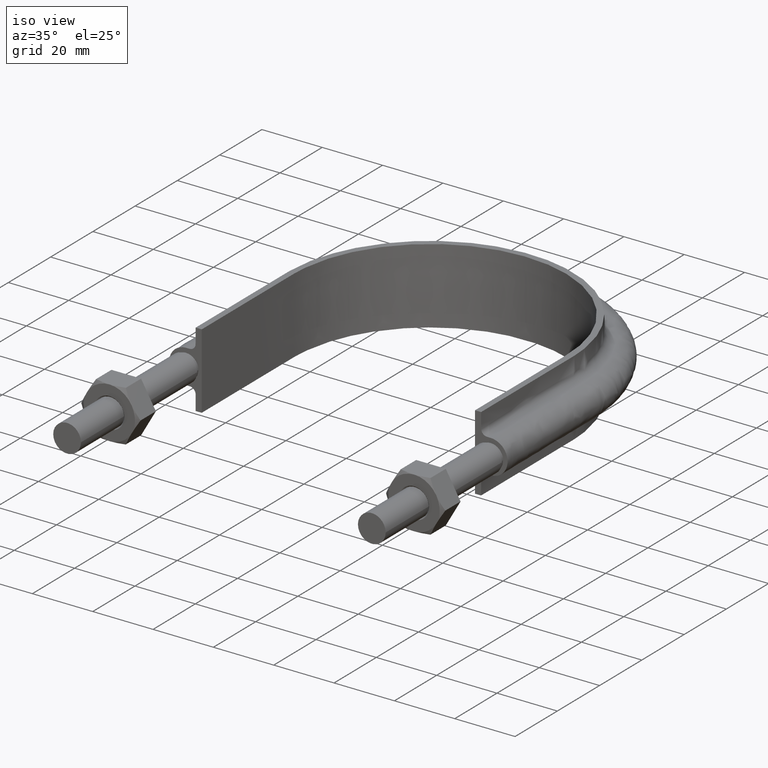
[diagram: clean part render]
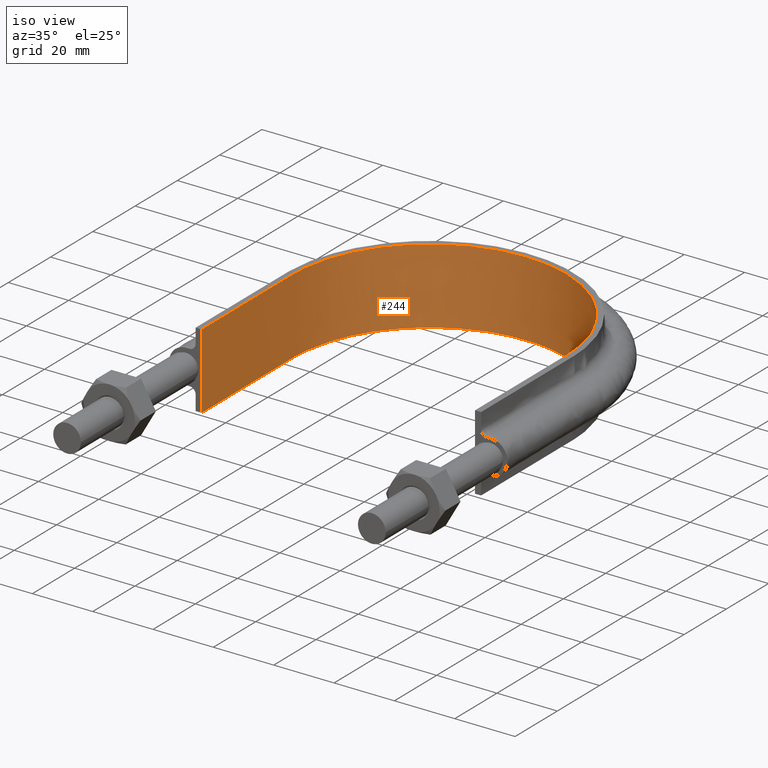
[diagram: same view with one face highlighted and labeled with its STEP entity id]
A machine part, iso view. The second image highlights one B-rep face of the part: STEP entity #244.
In plain terms, the highlighted face is a SurfaceOfExtrusion surface.
Its self-contained STEP definition (entity closure, byte-faithful):
#244 = ADVANCED_FACE( '', ( #355 ), #356, .T. );
#355 = FACE_OUTER_BOUND( '', #686, .T. );
#356 = SURFACE_OF_LINEAR_EXTRUSION( '', #687, #688 );
#686 = EDGE_LOOP( '', ( #1604, #1605, #1606, #1607 ) );
#687 = B_SPLINE_CURVE_WITH_KNOTS( '', 3, ( #1608, #1609, #1610, #1611, #1612, #1613, #1614, #1615, #1616, #1617, #1618, #1619, #1620, #1621, #1622, #1623 ), .UNSPECIFIED., .F., .F., ( 4, 3, 1, 1, 1, 1, 1, 1, 3, 4 ), ( -8.93133047210300, -8.00000000000000, -7.00000000000000, -6.00000000000000, -5.00000000000000, -4.00000000000000, -3.00000000000000, -2.00000000000000, -1.00000000000000, -0.0686695278969956 ), .UNSPECIFIED. );
#688 = VECTOR( '', #1624, 1000.00000000000 );
#1604 = ORIENTED_EDGE( '', *, *, #2026, .T. );
#1605 = ORIENTED_EDGE( '', *, *, #2035, .T. );
#1606 = ORIENTED_EDGE( '', *, *, #2032, .F. );
#1607 = ORIENTED_EDGE( '', *, *, #2036, .T. );
#1608 = CARTESIAN_POINT( '', ( 45.3000000000000, 56.3000000000000, 12.5000100000910 ) );
#1609 = CARTESIAN_POINT( '', ( 45.3000000000000, 70.7666666666667, 12.5000100000910 ) );
#1610 = CARTESIAN_POINT( '', ( 45.3000000000000, 85.2333333333333, 12.5000100000910 ) );
#1611 = CARTESIAN_POINT( '', ( 45.3000000000000, 99.7000000000000, 12.5000100000910 ) );
#1612 = CARTESIAN_POINT( '', ( 45.3000000000000, 106.461794206864, 12.5000100000910 ) );
#1613 = CARTESIAN_POINT( '', ( 42.2071641315033, 120.032157601825, 12.5000100000910 ) );
#1614 = CARTESIAN_POINT( '', ( 29.2082638356160, 136.324357375469, 12.5000100000910 ) );
#1615 = CARTESIAN_POINT( '', ( 10.4243086712368, 145.372209831110, 12.5000100000910 ) );
#1616 = CARTESIAN_POINT( '', ( -10.4243086712368, 145.372209831110, 12.5000100000910 ) );
#1617 = CARTESIAN_POINT( '', ( -29.2082638356159, 136.324357375469, 12.5000100000910 ) );
#1618 = CARTESIAN_POINT( '', ( -42.2071641315033, 120.032157601825, 12.5000100000910 ) );
#1619 = CARTESIAN_POINT( '', ( -45.3000000000000, 106.461794206864, 12.5000100000910 ) );
#1620 = CARTESIAN_POINT( '', ( -45.3000000000000, 99.7000000000000, 12.5000100000910 ) );
#1621 = CARTESIAN_POINT( '', ( -45.3000000000000, 85.2333333333333, 12.5000100000910 ) );
#1622 = CARTESIAN_POINT( '', ( -45.3000000000000, 70.7666666666667, 12.5000100000910 ) );
#1623 = CARTESIAN_POINT( '', ( -45.3000000000000, 56.3000000000000, 12.5000100000910 ) );
#1624 = DIRECTION( '', ( 0.000000000000000, 0.000000000000000, -1.00000000000000 ) );
#2026 = EDGE_CURVE( '', #2199, #2200, #2201, .T. );
#2032 = EDGE_CURVE( '', #2209, #2212, #2213, .T. );
#2035 = EDGE_CURVE( '', #2200, #2212, #2217, .F. );
#2036 = EDGE_CURVE( '', #2209, #2199, #2218, .T. );
#2199 = VERTEX_POINT( '', #2500 );
#2200 = VERTEX_POINT( '', #2501 );
#2201 = LINE( '', #2502, #2503 );
#2209 = VERTEX_POINT( '', #2552 );
#2212 = VERTEX_POINT( '', #2556 );
#2213 = LINE( '', #2557, #2558 );
#2217 = B_SPLINE_CURVE_WITH_KNOTS( '', 3, ( #2593, #2594, #2595, #2596, #2597, #2598, #2599, #2600, #2601, #2602, #2603, #2604, #2605, #2606, #2607, #2608 ), .UNSPECIFIED., .F., .F., ( 4, 3, 1, 1, 1, 1, 1, 1, 3, 4 ), ( -8.93133047210300, -8.00000000000000, -7.00000000000000, -6.00000000000000, -5.00000000000000, -4.00000000000000, -3.00000000000000, -2.00000000000000, -1.00000000000000, -0.0686695278969956 ), .UNSPECIFIED. );
#2218 = B_SPLINE_CURVE_WITH_KNOTS( '', 3, ( #2609, #2610, #2611, #2612, #2613, #2614, #2615, #2616, #2617, #2618, #2619, #2620, #2621, #2622, #2623, #2624, #2625, #2626, #2627, #2628, #2629, #2630, #2631, #2632, #2633, #2634, #2635, #2636, #2637, #2638, #2639, #2640, #2641, #2642, #2643, #2644, #2645, #2646, #2647, #2648, #2649, #2650, #2651, #2652, #2653, #2654, #2655, #2656, #2657, #2658, #2659, #2660, #2661, #2662, #2663, #2664, #2665, #2666, #2667, #2668, #2669, #2670, #2671, #2672, #2673, #2674, #2675, #2676, #2677, #2678, #2679, #2680, #2681, #2682, #2683, #2684, #2685, #2686, #2687, #2688, #2689, #2690, #2691, #2692 ), .UNSPECIFIED., .F., .F., ( 4, 1, 2, 2, 2, 2, 2, 2, 2, 2, 2, 2, 2, 2, 2, 2, 2, 2, 2, 2, 2, 2, 2, 2, 2, 2, 2, 2, 2, 2, 2, 2, 2, 2, 2, 2, 2, 2, 2, 2, 2, 1, 4 ), ( 2.77555756156289E-017, 0.0287543779946536, 0.0431315669919804, 0.0440301413043133, 0.0449287156166463, 0.0467258642413122, 0.0503201614906441, 0.0575087559893078, 0.0611030532386397, 0.0629002018633056, 0.0646973504879716, 0.0718859449866353, 0.0754802422359672, 0.0790745394852990, 0.0862631339839628, 0.0898574312332946, 0.0916545798579606, 0.0934517284826265, 0.100640322981290, 0.107828917479954, 0.111423214729286, 0.115017511978618, 0.122206106477281, 0.124003255101947, 0.125800403726613, 0.129394700975945, 0.136583295474609, 0.138380444099275, 0.140177592723941, 0.143771889973273, 0.150960484471936, 0.154554781721268, 0.158149078970600, 0.165337673469264, 0.168931970718595, 0.170729119343261, 0.172526267967927, 0.179714862466591, 0.183309159715923, 0.185106308340588, 0.186903456965254, 0.201280645962582, 0.230035023957236 ), .UNSPECIFIED. );
#2500 = CARTESIAN_POINT( '', ( -45.3000000000000, 56.3000000000000, 12.5000000000000 ) );
#2501 = CARTESIAN_POINT( '', ( -45.3000000000000, 56.3000000000000, -12.5000000000000 ) );
#2502 = CARTESIAN_POINT( '', ( -45.3000000000000, 56.3000000000000, 12.5000100000910 ) );
#2503 = VECTOR( '', #3129, 1000.00000000000 );
#2552 = CARTESIAN_POINT( '', ( 45.3000000000000, 56.3000000000000, 12.5000000000000 ) );
#2556 = CARTESIAN_POINT( '', ( 45.3000000000000, 56.3000000000000, -12.5000000000000 ) );
#2557 = CARTESIAN_POINT( '', ( 45.3000000000000, 56.3000000000000, 12.5000100000910 ) );
#2558 = VECTOR( '', #3133, 1000.00000000000 );
#2593 = CARTESIAN_POINT( '', ( 45.3000000000000, 56.3000000000000, -12.5000000000000 ) );
#2594 = CARTESIAN_POINT( '', ( 45.3000000000000, 70.7666666666667, -12.5000000000000 ) );
#2595 = CARTESIAN_POINT( '', ( 45.3000000000000, 85.2333333333333, -12.5000000000000 ) );
#2596 = CARTESIAN_POINT( '', ( 45.3000000000000, 99.7000000000000, -12.5000000000000 ) );
#2597 = CARTESIAN_POINT( '', ( 45.3000000000000, 106.461794206864, -12.5000000000000 ) );
#2598 = CARTESIAN_POINT( '', ( 42.2071641315033, 120.032157601825, -12.5000000000000 ) );
#2599 = CARTESIAN_POINT( '', ( 29.2082638356160, 136.324357375469, -12.5000000000000 ) );
#2600 = CARTESIAN_POINT( '', ( 10.4243086712368, 145.372209831110, -12.5000000000000 ) );
#2601 = CARTESIAN_POINT( '', ( -10.4243086712368, 145.372209831110, -12.5000000000000 ) );
#2602 = CARTESIAN_POINT( '', ( -29.2082638356159, 136.324357375469, -12.5000000000000 ) );
#2603 = CARTESIAN_POINT( '', ( -42.2071641315033, 120.032157601825, -12.5000000000000 ) );
#2604 = CARTESIAN_POINT( '', ( -45.3000000000000, 106.461794206864, -12.5000000000000 ) );
#2605 = CARTESIAN_POINT( '', ( -45.3000000000000, 99.7000000000000, -12.5000000000000 ) );
#2606 = CARTESIAN_POINT( '', ( -45.3000000000000, 85.2333333333333, -12.5000000000000 ) );
#2607 = CARTESIAN_POINT( '', ( -45.3000000000000, 70.7666666666667, -12.5000000000000 ) );
#2608 = CARTESIAN_POINT( '', ( -45.3000000000000, 56.3000000000000, -12.5000000000000 ) );
#2609 = CARTESIAN_POINT( '', ( 45.3000000000000, 56.3000000000000, 12.5000000000000 ) );
#2610 = CARTESIAN_POINT( '', ( 45.3000000000000, 65.8848205646283, 12.5000000000000 ) );
#2611 = CARTESIAN_POINT( '', ( 45.3000000000000, 80.2620514115707, 12.5000000000000 ) );
#2612 = CARTESIAN_POINT( '', ( 45.3000000000000, 94.6392822585131, 12.5000000000000 ) );
#2613 = CARTESIAN_POINT( '', ( 45.3000000000000, 99.7312181834718, 12.5000000000000 ) );
#2614 = CARTESIAN_POINT( '', ( 45.2997760120250, 100.030743285675, 12.5000000000000 ) );
#2615 = CARTESIAN_POINT( '', ( 45.2912777717044, 100.629774066281, 12.5000000000000 ) );
#2616 = CARTESIAN_POINT( '', ( 45.2840050595566, 100.929282161215, 12.5000000000000 ) );
#2617 = CARTESIAN_POINT( '', ( 45.2531480099003, 101.827784636791, 12.5000000000000 ) );
#2618 = CARTESIAN_POINT( '', ( 45.2204957104834, 102.427200024520, 12.5000000000000 ) );
#2619 = CARTESIAN_POINT( '', ( 45.0866957945141, 104.222494949273, 12.5000000000000 ) );
#2620 = CARTESIAN_POINT( '', ( 44.9504291017170, 105.407906322015, 12.5000000000000 ) );
#2621 = CARTESIAN_POINT( '', ( 44.4061177465218, 108.931168904230, 12.5000000000000 ) );
#2622 = CARTESIAN_POINT( '', ( 43.8636822485659, 111.236321194623, 12.5000000000000 ) );
#2623 = CARTESIAN_POINT( '', ( 42.7815683609984, 114.628729902663, 12.5000000000000 ) );
#2624 = CARTESIAN_POINT( '', ( 42.3758385758423, 115.748577639201, 12.5000000000000 ) );
#2625 = CARTESIAN_POINT( '', ( 41.6971261299260, 117.411288741198, 12.5000000000000 ) );
#2626 = CARTESIAN_POINT( '', ( 41.4587485176160, 117.963522487295, 12.5000000000000 ) );
#2627 = CARTESIAN_POINT( '', ( 40.9623939009448, 119.052686028662, 12.5000000000000 ) );
#2628 = CARTESIAN_POINT( '', ( 40.7040140940422, 119.590633634306, 12.5000000000000 ) );
#2629 = CARTESIAN_POINT( '', ( 39.3618284958927, 122.247672872113, 12.5000000000000 ) );
#2630 = CARTESIAN_POINT( '', ( 38.1287732829048, 124.269715209024, 12.5000000000000 ) );
#2631 = CARTESIAN_POINT( '', ( 36.0483927303404, 127.152702706861, 12.5000000000000 ) );
#2632 = CARTESIAN_POINT( '', ( 35.3162279376427, 128.088530904417, 12.5000000000000 ) );
#2633 = CARTESIAN_POINT( '', ( 33.7729613787722, 129.908858607226, 12.5000000000000 ) );
#2634 = CARTESIAN_POINT( '', ( 32.9584983694078, 130.796352407073, 12.5000000000000 ) );
#2635 = CARTESIAN_POINT( '', ( 30.4343658146004, 133.337344556213, 12.5000000000000 ) );
#2636 = CARTESIAN_POINT( '', ( 28.6360692622386, 134.881493975360, 12.5000000000000 ) );
#2637 = CARTESIAN_POINT( '', ( 25.7668653719942, 136.974964438366, 12.5000000000000 ) );
#2638 = CARTESIAN_POINT( '', ( 24.7819445161321, 137.635801019642, 12.5000000000000 ) );
#2639 = CARTESIAN_POINT( '', ( 23.2616146962020, 138.571356100425, 12.5000000000000 ) );
#2640 = CARTESIAN_POINT( '', ( 22.7476691870376, 138.873910471946, 12.5000000000000 ) );
#2641 = CARTESIAN_POINT( '', ( 21.7052773821732, 139.460213200769, 12.5000000000000 ) );
#2642 = CARTESIAN_POINT( '', ( 21.1756556167052, 139.744537298346, 12.5000000000000 ) );
#2643 = CARTESIAN_POINT( '', ( 18.5103111801554, 141.108501344270, 12.5000000000000 ) );
#2644 = CARTESIAN_POINT( '', ( 16.3185331092020, 142.020394560135, 12.5000000000000 ) );
#2645 = CARTESIAN_POINT( '', ( 11.8189661583873, 143.494646423883, 12.5000000000000 ) );
#2646 = CARTESIAN_POINT( '', ( 9.51076198777615, 144.055753822214, 12.5000000000000 ) );
#2647 = CARTESIAN_POINT( '', ( 5.95662532797857, 144.620734661634, 12.5000000000000 ) );
#2648 = CARTESIAN_POINT( '', ( 4.76788785050952, 144.761147485507, 12.5000000000000 ) );
#2649 = CARTESIAN_POINT( '', ( 2.39647070391247, 144.947851083060, 12.5000000000000 ) );
#2650 = CARTESIAN_POINT( '', ( 1.21153117527855, 144.994499013257, 12.5000000000000 ) );
#2651 = CARTESIAN_POINT( '', ( -2.34101805316255, 144.996625356462, 12.5000000000000 ) );
#2652 = CARTESIAN_POINT( '', ( -4.70637779815009, 144.815464639074, 12.5000000000000 ) );
#2653 = CARTESIAN_POINT( '', ( -7.65915858277232, 144.351020241084, 12.5000000000000 ) );
#2654 = CARTESIAN_POINT( '', ( -8.25083455194669, 144.245862246466, 12.5000000000000 ) );
#2655 = CARTESIAN_POINT( '', ( -9.42653190172399, 144.012409776832, 12.5000000000000 ) );
#2656 = CARTESIAN_POINT( '', ( -10.0101476162836, 143.884250803394, 12.5000000000000 ) );
#2657 = CARTESIAN_POINT( '', ( -11.7484468334342, 143.465883377835, 12.5000000000000 ) );
#2658 = CARTESIAN_POINT( '', ( -12.8906527223969, 143.141974327520, 12.5000000000000 ) );
#2659 = CARTESIAN_POINT( '', ( -16.2689101217008, 142.039631660257, 12.5000000000000 ) );
#2660 = CARTESIAN_POINT( '', ( -18.4569925447982, 141.131639060066, 12.5000000000000 ) );
#2661 = CARTESIAN_POINT( '', ( -21.1113012403399, 139.778432115202, 12.5000000000000 ) );
#2662 = CARTESIAN_POINT( '', ( -21.6380918925233, 139.496795189040, 12.5000000000000 ) );
#2663 = CARTESIAN_POINT( '', ( -22.6833837807200, 138.911132577781, 12.5000000000000 ) );
#2664 = CARTESIAN_POINT( '', ( -23.2017061819432, 138.607128404409, 12.5000000000000 ) );
#2665 = CARTESIAN_POINT( '', ( -24.7303471350012, 137.669564342871, 12.5000000000000 ) );
#2666 = CARTESIAN_POINT( '', ( -25.7191011998732, 137.007938274698, 12.5000000000000 ) );
#2667 = CARTESIAN_POINT( '', ( -28.5955069273408, 134.914712609781, 12.5000000000000 ) );
#2668 = CARTESIAN_POINT( '', ( -30.3928386158799, 133.374206663575, 12.5000000000000 ) );
#2669 = CARTESIAN_POINT( '', ( -32.9098802473355, 130.847665641424, 12.5000000000000 ) );
#2670 = CARTESIAN_POINT( '', ( -33.7201063858691, 129.968144324298, 12.5000000000000 ) );
#2671 = CARTESIAN_POINT( '', ( -35.2745676507393, 128.140548074671, 12.5000000000000 ) );
#2672 = CARTESIAN_POINT( '', ( -36.0108033379542, 127.202093103808, 12.5000000000000 ) );
#2673 = CARTESIAN_POINT( '', ( -38.0999731742671, 124.314831254988, 12.5000000000000 ) );
#2674 = CARTESIAN_POINT( '', ( -39.3343184899537, 122.294697861215, 12.5000000000000 ) );
#2675 = CARTESIAN_POINT( '', ( -40.9440306770637, 119.119061107137, 12.5000000000000 ) );
#2676 = CARTESIAN_POINT( '', ( -41.4398476877741, 118.036003764877, 12.5000000000000 ) );
#2677 = CARTESIAN_POINT( '', ( -42.1215319712500, 116.374102391935, 12.5000000000000 ) );
#2678 = CARTESIAN_POINT( '', ( -42.3385970417913, 115.813283805220, 12.5000000000000 ) );
#2679 = CARTESIAN_POINT( '', ( -42.7483267135284, 114.689073533850, 12.5000000000000 ) );
#2680 = CARTESIAN_POINT( '', ( -42.9414928116361, 114.124536114339, 12.5000000000000 ) );
#2681 = CARTESIAN_POINT( '', ( -43.8499727665167, 111.289925270555, 12.5000000000000 ) );
#2682 = CARTESIAN_POINT( '', ( -44.3947073189255, 108.984386713932, 12.5000000000000 ) );
#2683 = CARTESIAN_POINT( '', ( -44.9423619636432, 105.470058132087, 12.5000000000000 ) );
#2684 = CARTESIAN_POINT( '', ( -45.0797192826280, 104.289218942135, 12.5000000000000 ) );
#2685 = CARTESIAN_POINT( '', ( -45.2157289936545, 102.503401000383, 12.5000000000000 ) );
#2686 = CARTESIAN_POINT( '', ( -45.2493799141445, 101.905563911382, 12.5000000000000 ) );
#2687 = CARTESIAN_POINT( '', ( -45.2926573150339, 100.705446197623, 12.5000000000000 ) );
#2688 = CARTESIAN_POINT( '', ( -45.3000000000000, 100.105377557368, 12.5000000000000 ) );
#2689 = CARTESIAN_POINT( '', ( -45.3000000000000, 94.7047145708432, 12.5000000000000 ) );
#2690 = CARTESIAN_POINT( '', ( -45.3000000000000, 80.3029466067769, 12.5000000000000 ) );
#2691 = CARTESIAN_POINT( '', ( -45.3000000000000, 65.9011786427107, 12.5000000000000 ) );
#2692 = CARTESIAN_POINT( '', ( -45.3000000000000, 56.3000000000001, 12.5000000000000 ) );
#3129 = DIRECTION( '', ( 0.000000000000000, 0.000000000000000, -1.00000000000000 ) );
#3133 = DIRECTION( '', ( 0.000000000000000, 0.000000000000000, -1.00000000000000 ) );